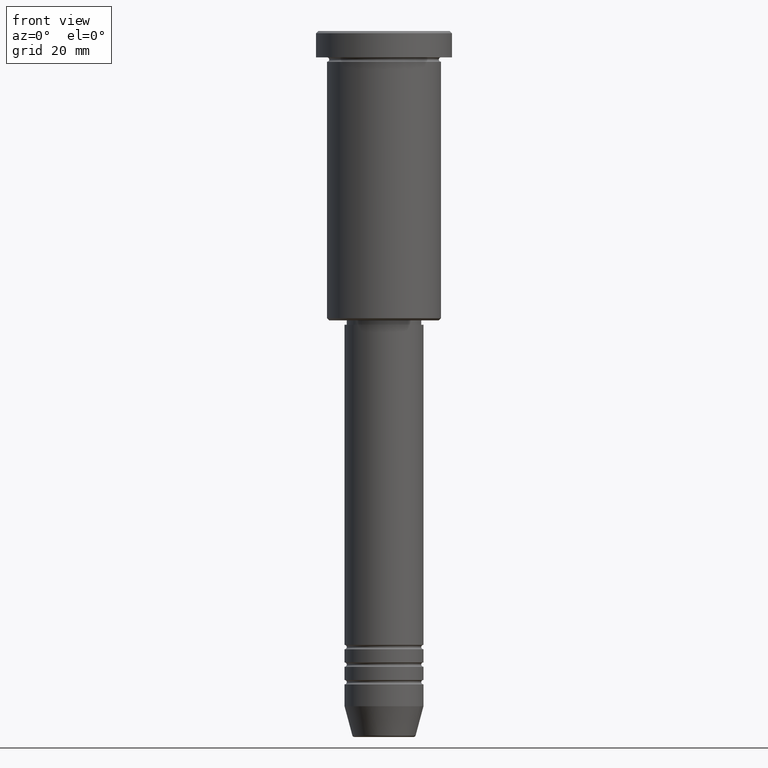
[diagram: clean part render]
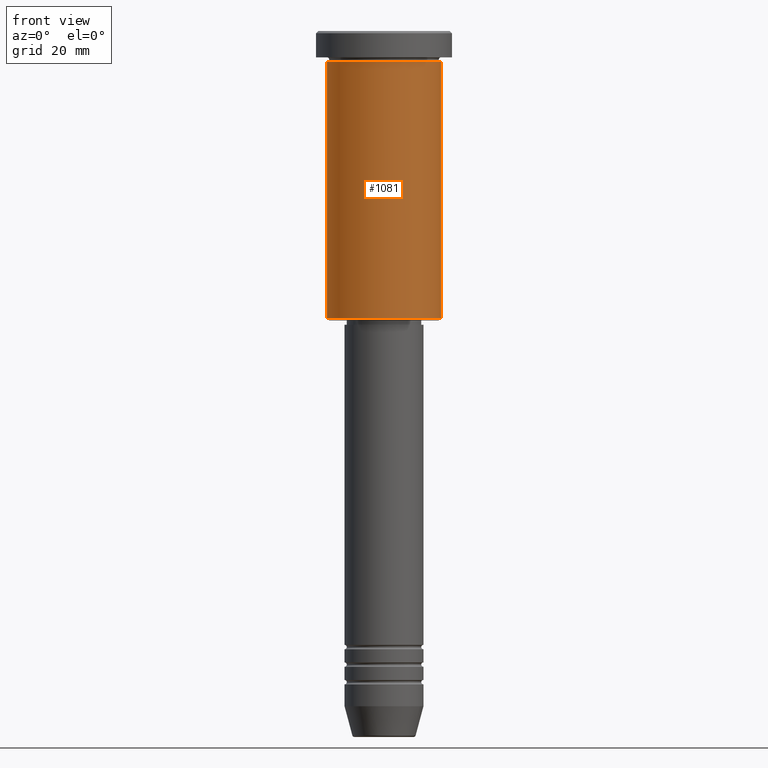
[diagram: same view with one face highlighted and labeled with its STEP entity id]
A machine part, front view. The second image highlights one B-rep face of the part: STEP entity #1081.
In plain terms, the highlighted cylindrical surface (partial cylindrical patch) has radius 13 mm, axis along (-0, -0, 1).
Its self-contained STEP definition (entity closure, byte-faithful):
#19 = VECTOR ( 'NONE', #676, 1000.000000000000000 ) ;
#21 = CARTESIAN_POINT ( 'NONE',  ( 0.000000000000000000, 0.000000000000000000, -6.999999999999995559 ) ) ;
#62 = EDGE_LOOP ( 'NONE', ( #572, #140, #889, #657 ) ) ;
#77 = DIRECTION ( 'NONE',  ( -0.000000000000000000, -0.000000000000000000, 1.000000000000000000 ) ) ;
#140 = ORIENTED_EDGE ( 'NONE', *, *, #742, .T. ) ;
#247 = CIRCLE ( 'NONE', #629, 13.00000000000000178 ) ;
#272 = CARTESIAN_POINT ( 'NONE',  ( -13.00000000000000178, 1.592040838891559293E-15, -6.999999999999995559 ) ) ;
#273 = LINE ( 'NONE', #894, #346 ) ;
#284 = DIRECTION ( 'NONE',  ( -0.000000000000000000, -0.000000000000000000, 1.000000000000000000 ) ) ;
#291 = DIRECTION ( 'NONE',  ( 1.000000000000000000, 0.000000000000000000, 0.000000000000000000 ) ) ;
#343 = VERTEX_POINT ( 'NONE', #803 ) ;
#345 = CIRCLE ( 'NONE', #1006, 13.00000000000000178 ) ;
#346 = VECTOR ( 'NONE', #77, 1000.000000000000000 ) ;
#386 = FACE_OUTER_BOUND ( 'NONE', #62, .T. ) ;
#436 = CARTESIAN_POINT ( 'NONE',  ( -13.00000000000000178, 1.592040838891559293E-15, -65.50000000000002842 ) ) ;
#437 = EDGE_CURVE ( 'NONE', #343, #514, #933, .T. ) ;
#514 = VERTEX_POINT ( 'NONE', #1095 ) ;
#572 = ORIENTED_EDGE ( 'NONE', *, *, #984, .F. ) ;
#597 = VERTEX_POINT ( 'NONE', #272 ) ;
#629 = AXIS2_PLACEMENT_3D ( 'NONE', #21, #655, #853 ) ;
#655 = DIRECTION ( 'NONE',  ( -0.000000000000000000, -0.000000000000000000, 1.000000000000000000 ) ) ;
#657 = ORIENTED_EDGE ( 'NONE', *, *, #723, .F. ) ;
#676 = DIRECTION ( 'NONE',  ( -0.000000000000000000, -0.000000000000000000, 1.000000000000000000 ) ) ;
#723 = EDGE_CURVE ( 'NONE', #597, #514, #247, .T. ) ;
#742 = EDGE_CURVE ( 'NONE', #905, #343, #345, .T. ) ;
#750 = DIRECTION ( 'NONE',  ( -0.000000000000000000, -0.000000000000000000, 1.000000000000000000 ) ) ;
#753 = CYLINDRICAL_SURFACE ( 'NONE', #1119, 13.00000000000000178 ) ;
#760 = CARTESIAN_POINT ( 'NONE',  ( 13.00000000000000178, 0.000000000000000000, 0.000000000000000000 ) ) ;
#803 = CARTESIAN_POINT ( 'NONE',  ( 13.00000000000000178, 0.000000000000000000, -65.50000000000002842 ) ) ;
#853 = DIRECTION ( 'NONE',  ( 1.000000000000000000, 0.000000000000000000, 0.000000000000000000 ) ) ;
#889 = ORIENTED_EDGE ( 'NONE', *, *, #437, .T. ) ;
#894 = CARTESIAN_POINT ( 'NONE',  ( -13.00000000000000178, 1.592040838891559293E-15, 0.000000000000000000 ) ) ;
#905 = VERTEX_POINT ( 'NONE', #436 ) ;
#933 = LINE ( 'NONE', #760, #19 ) ;
#984 = EDGE_CURVE ( 'NONE', #905, #597, #273, .T. ) ;
#1005 = CARTESIAN_POINT ( 'NONE',  ( 0.000000000000000000, 0.000000000000000000, 0.000000000000000000 ) ) ;
#1006 = AXIS2_PLACEMENT_3D ( 'NONE', #1098, #750, #1117 ) ;
#1081 = ADVANCED_FACE ( 'NONE', ( #386 ), #753, .T. ) ;
#1095 = CARTESIAN_POINT ( 'NONE',  ( 13.00000000000000178, 0.000000000000000000, -6.999999999999995559 ) ) ;
#1098 = CARTESIAN_POINT ( 'NONE',  ( 0.000000000000000000, 0.000000000000000000, -65.50000000000002842 ) ) ;
#1117 = DIRECTION ( 'NONE',  ( -1.000000000000000000, 0.000000000000000000, 0.000000000000000000 ) ) ;
#1119 = AXIS2_PLACEMENT_3D ( 'NONE', #1005, #284, #291 ) ;